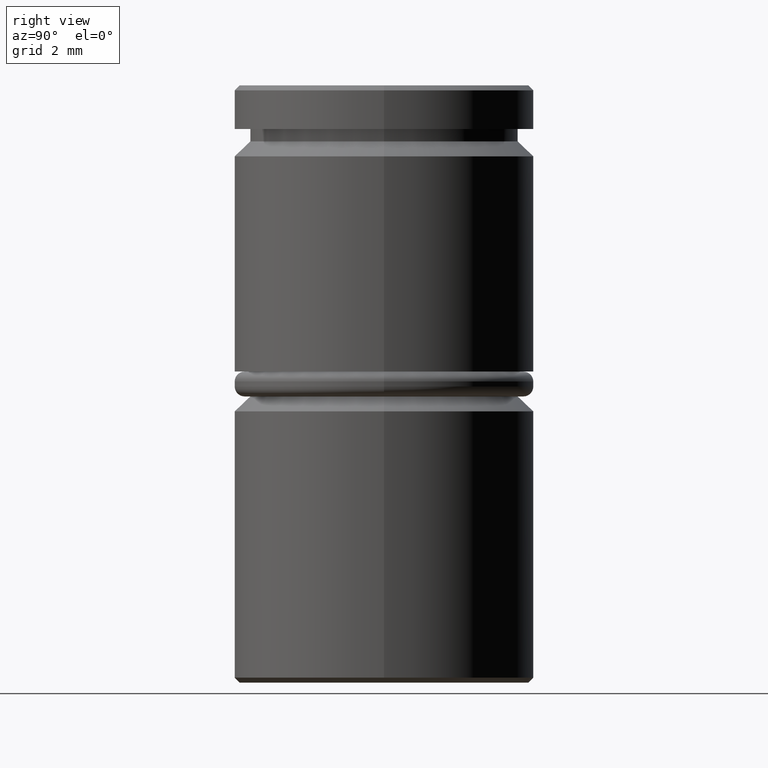
[diagram: clean part render]
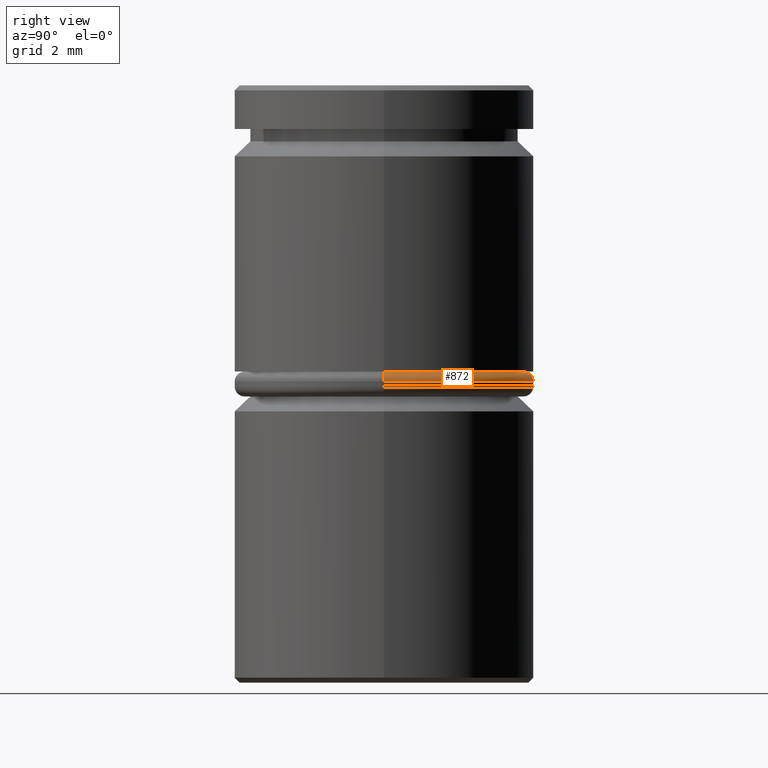
[diagram: same view with one face highlighted and labeled with its STEP entity id]
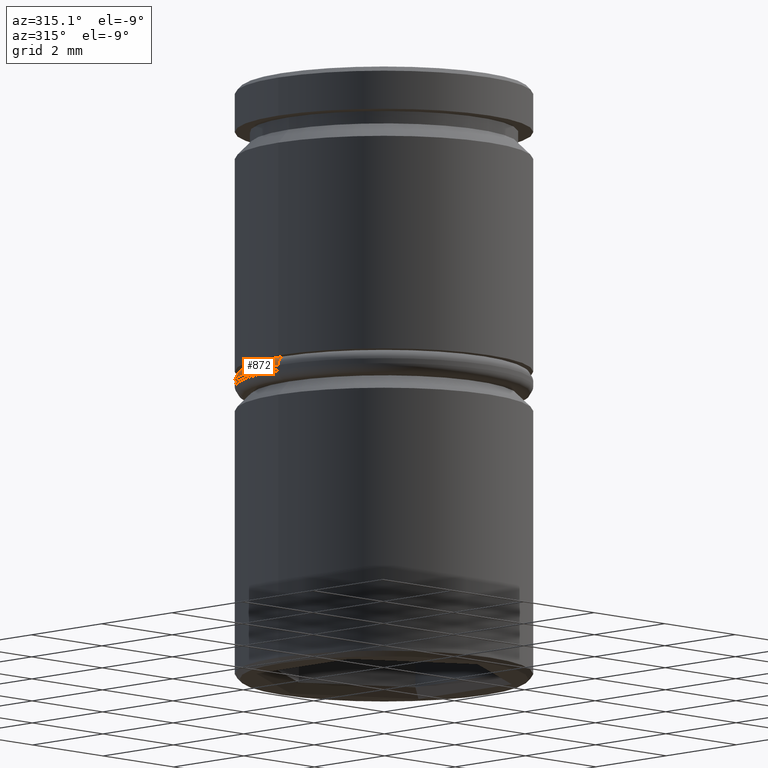
[diagram: same view with one face highlighted and labeled with its STEP entity id]
A machine part, right view. The second image highlights one B-rep face of the part: STEP entity #872.
A second angle (auxiliary view) of the same face is appended — the face is thin or edge-on in the first view.
In plain terms, the highlighted toroidal blend (fillet) surface has major radius 2.8 mm and minor (blend) radius 0.2 mm.
Its self-contained STEP definition (entity closure, byte-faithful):
#15 = CARTESIAN_POINT ( 'NONE',  ( 2.800000000000000266, 3.551475717527324325E-16, -5.750000000000000000 ) ) ;
#47 = EDGE_CURVE ( 'NONE', #446, #573, #883, .T. ) ;
#59 = EDGE_CURVE ( 'NONE', #573, #88, #506, .T. ) ;
#65 = CARTESIAN_POINT ( 'NONE',  ( 0.000000000000000000, 0.000000000000000000, -5.750000000000000000 ) ) ;
#88 = VERTEX_POINT ( 'NONE', #241 ) ;
#97 = AXIS2_PLACEMENT_3D ( 'NONE', #310, #859, #1065 ) ;
#116 = DIRECTION ( 'NONE',  ( 0.000000000000000000, 0.000000000000000000, -1.000000000000000000 ) ) ;
#171 = VERTEX_POINT ( 'NONE', #15 ) ;
#210 = FACE_OUTER_BOUND ( 'NONE', #910, .T. ) ;
#224 = DIRECTION ( 'NONE',  ( -1.224646799147353207E-16, 1.000000000000000000, 0.000000000000000000 ) ) ;
#238 = DIRECTION ( 'NONE',  ( -0.000000000000000000, -0.000000000000000000, 1.000000000000000000 ) ) ;
#241 = CARTESIAN_POINT ( 'NONE',  ( 3.000000000000000444, 0.000000000000000000, -5.949999999999998401 ) ) ;
#300 = ORIENTED_EDGE ( 'NONE', *, *, #1112, .F. ) ;
#308 = AXIS2_PLACEMENT_3D ( 'NONE', #1052, #224, #1141 ) ;
#310 = CARTESIAN_POINT ( 'NONE',  ( 0.000000000000000000, 0.000000000000000000, -5.949999999999998401 ) ) ;
#322 = DIRECTION ( 'NONE',  ( -0.000000000000000000, -1.000000000000000000, -0.000000000000000000 ) ) ;
#329 = AXIS2_PLACEMENT_3D ( 'NONE', #1137, #322, #1155 ) ;
#347 = CARTESIAN_POINT ( 'NONE',  ( -2.800000000000000266, 0.000000000000000000, -5.750000000000000000 ) ) ;
#422 = CIRCLE ( 'NONE', #838, 2.800000000000000266 ) ;
#446 = VERTEX_POINT ( 'NONE', #347 ) ;
#506 = CIRCLE ( 'NONE', #97, 3.000000000000000444 ) ;
#507 = DIRECTION ( 'NONE',  ( -1.000000000000000000, 0.000000000000000000, 0.000000000000000000 ) ) ;
#573 = VERTEX_POINT ( 'NONE', #644 ) ;
#644 = CARTESIAN_POINT ( 'NONE',  ( -3.000000000000000444, 3.673940397442060361E-16, -5.949999999999998401 ) ) ;
#651 = ORIENTED_EDGE ( 'NONE', *, *, #59, .F. ) ;
#707 = CIRCLE ( 'NONE', #308, 0.2000000000000000944 ) ;
#718 = EDGE_CURVE ( 'NONE', #171, #88, #707, .T. ) ;
#747 = AXIS2_PLACEMENT_3D ( 'NONE', #847, #116, #772 ) ;
#772 = DIRECTION ( 'NONE',  ( -1.000000000000000000, 0.000000000000000000, 0.000000000000000000 ) ) ;
#838 = AXIS2_PLACEMENT_3D ( 'NONE', #65, #238, #507 ) ;
#847 = CARTESIAN_POINT ( 'NONE',  ( 0.000000000000000000, 0.000000000000000000, -5.949999999999998401 ) ) ;
#859 = DIRECTION ( 'NONE',  ( 0.000000000000000000, 0.000000000000000000, -1.000000000000000000 ) ) ;
#872 = ADVANCED_FACE ( 'NONE', ( #210 ), #894, .T. ) ;
#883 = CIRCLE ( 'NONE', #329, 0.1999999999999996503 ) ;
#892 = ORIENTED_EDGE ( 'NONE', *, *, #718, .T. ) ;
#894 = TOROIDAL_SURFACE ( 'NONE', #747, 2.800000000000000266, 0.2000000000000000111 ) ;
#910 = EDGE_LOOP ( 'NONE', ( #300, #892, #651, #1146 ) ) ;
#1052 = CARTESIAN_POINT ( 'NONE',  ( 2.800000000000000266, 3.429011037612589276E-16, -5.949999999999998401 ) ) ;
#1065 = DIRECTION ( 'NONE',  ( -1.000000000000000000, 0.000000000000000000, 0.000000000000000000 ) ) ;
#1112 = EDGE_CURVE ( 'NONE', #171, #446, #422, .T. ) ;
#1137 = CARTESIAN_POINT ( 'NONE',  ( -2.800000000000000266, 0.000000000000000000, -5.949999999999998401 ) ) ;
#1141 = DIRECTION ( 'NONE',  ( -1.000000000000000000, -1.224646799147353207E-16, 0.000000000000000000 ) ) ;
#1146 = ORIENTED_EDGE ( 'NONE', *, *, #47, .F. ) ;
#1155 = DIRECTION ( 'NONE',  ( 0.000000000000000000, 0.000000000000000000, -1.000000000000000000 ) ) ;